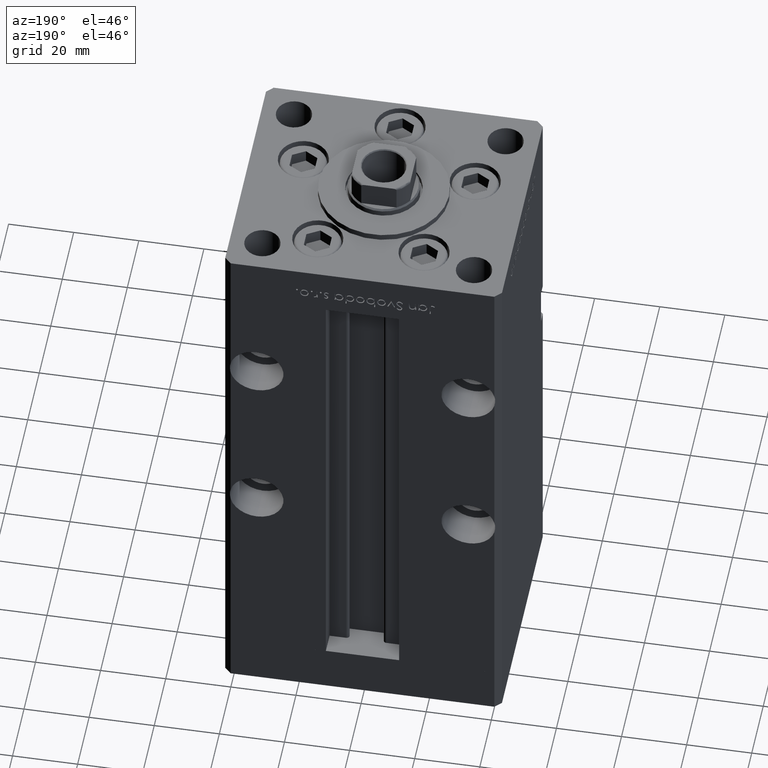
[diagram: clean part render]
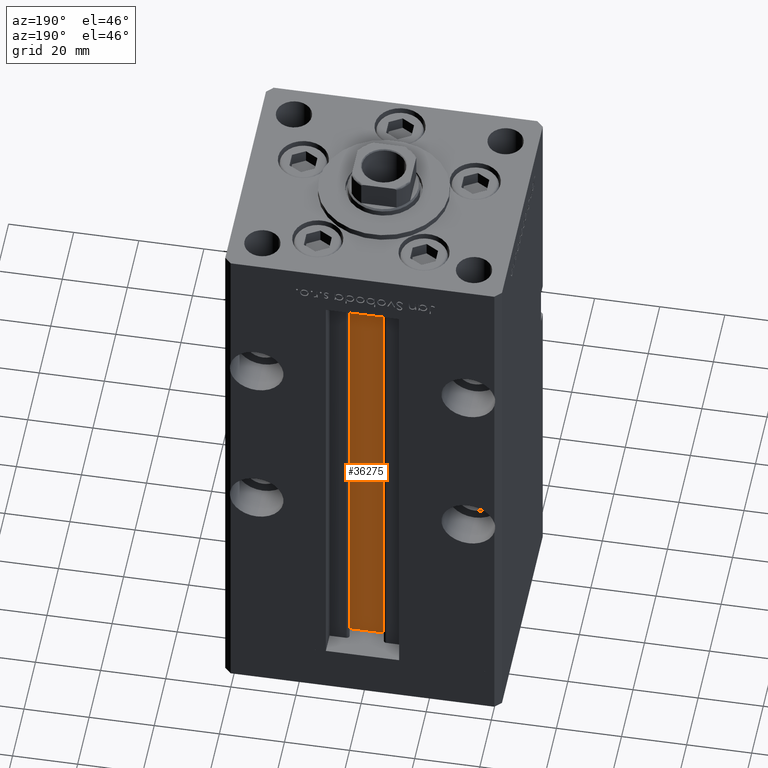
[diagram: same view with one face highlighted and labeled with its STEP entity id]
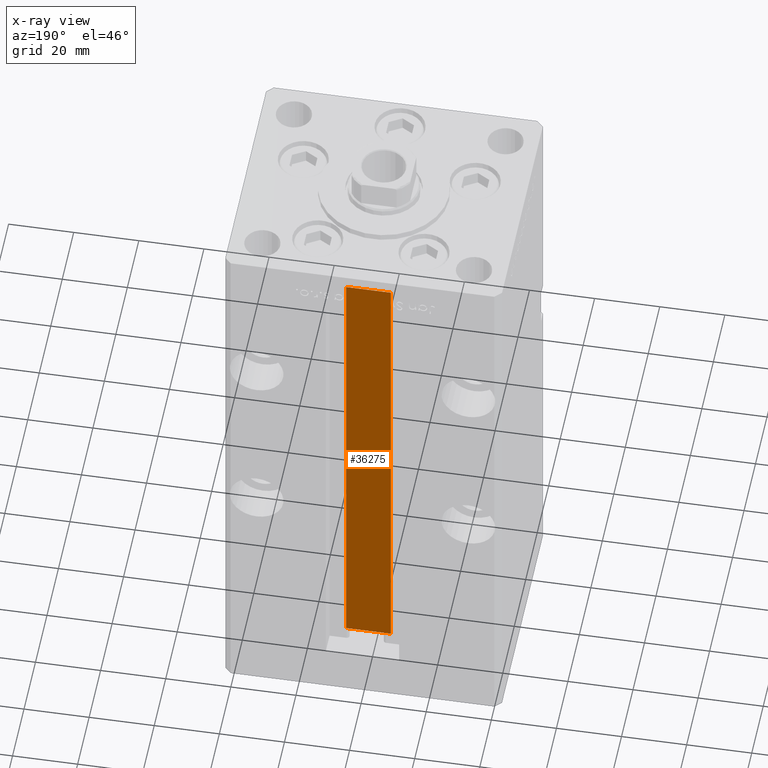
[diagram: x-ray of the same camera — body ghosted, the highlighted face saturated]
A machine part, auxiliary view. The second image highlights one B-rep face of the part: STEP entity #36275.
The next image is the same camera in x-ray: the body ghosted, the highlighted face saturated — about 0% of this face is hidden behind the body in this view.
In plain terms, the highlighted planar face has unit normal (0, -1, 0).
Its self-contained STEP definition (entity closure, byte-faithful):
#380 = CARTESIAN_POINT ( 'NONE',  ( 6.876153656360465938, 26.99999999999986855, 0.000000000000000000 ) ) ;
#715 = CARTESIAN_POINT ( 'NONE',  ( -6.876153656360465938, 26.99999999999986855, 0.000000000000000000 ) ) ;
#1539 = ORIENTED_EDGE ( 'NONE', *, *, #35085, .F. ) ;
#3100 = FACE_OUTER_BOUND ( 'NONE', #31884, .T. ) ;
#4001 = ORIENTED_EDGE ( 'NONE', *, *, #31558, .F. ) ;
#5579 = ORIENTED_EDGE ( 'NONE', *, *, #34227, .T. ) ;
#5958 = DIRECTION ( 'NONE',  ( -0.000000000000000000, -0.000000000000000000, 1.000000000000000000 ) ) ;
#6955 = VECTOR ( 'NONE', #11304, 1000.000000000000000 ) ;
#7330 = LINE ( 'NONE', #47887, #21591 ) ;
#8433 = ORIENTED_EDGE ( 'NONE', *, *, #22993, .F. ) ;
#9498 = VERTEX_POINT ( 'NONE', #52162 ) ;
#11304 = DIRECTION ( 'NONE',  ( -0.000000000000000000, -0.000000000000000000, 1.000000000000000000 ) ) ;
#12137 = VERTEX_POINT ( 'NONE', #28974 ) ;
#15504 = CARTESIAN_POINT ( 'NONE',  ( 0.000000000000000000, 26.99999999999986855, 148.5000000000000000 ) ) ;
#19495 = PLANE ( 'NONE',  #33649 ) ;
#20825 = DIRECTION ( 'NONE',  ( 0.000000000000000000, 0.000000000000000000, -1.000000000000000000 ) ) ;
#21161 = LINE ( 'NONE', #715, #6955 ) ;
#21591 = VECTOR ( 'NONE', #44391, 1000.000000000000000 ) ;
#22993 = EDGE_CURVE ( 'NONE', #12137, #30149, #27684, .T. ) ;
#24483 = VERTEX_POINT ( 'NONE', #48456 ) ;
#25634 = DIRECTION ( 'NONE',  ( 0.000000000000000000, -1.000000000000000000, -0.000000000000000000 ) ) ;
#27684 = LINE ( 'NONE', #38717, #41771 ) ;
#28974 = CARTESIAN_POINT ( 'NONE',  ( 6.876153656360465938, 26.99999999999986855, 0.000000000000000000 ) ) ;
#30149 = VERTEX_POINT ( 'NONE', #32680 ) ;
#31558 = EDGE_CURVE ( 'NONE', #9498, #12137, #7330, .T. ) ;
#31884 = EDGE_LOOP ( 'NONE', ( #8433, #4001, #5579, #1539 ) ) ;
#32680 = CARTESIAN_POINT ( 'NONE',  ( 6.876153656360465938, 26.99999999999986855, 148.5000000000000000 ) ) ;
#33649 = AXIS2_PLACEMENT_3D ( 'NONE', #380, #25634, #20825 ) ;
#34227 = EDGE_CURVE ( 'NONE', #9498, #24483, #21161, .T. ) ;
#35085 = EDGE_CURVE ( 'NONE', #30149, #24483, #45044, .T. ) ;
#36275 = ADVANCED_FACE ( 'NONE', ( #3100 ), #19495, .F. ) ;
#38717 = CARTESIAN_POINT ( 'NONE',  ( 6.876153656360465938, 26.99999999999986855, 0.000000000000000000 ) ) ;
#41771 = VECTOR ( 'NONE', #5958, 1000.000000000000000 ) ;
#44391 = DIRECTION ( 'NONE',  ( 1.000000000000000000, -0.000000000000000000, -0.000000000000000000 ) ) ;
#45044 = LINE ( 'NONE', #15504, #52443 ) ;
#47887 = CARTESIAN_POINT ( 'NONE',  ( 6.876153656360465938, 26.99999999999986855, 0.000000000000000000 ) ) ;
#48456 = CARTESIAN_POINT ( 'NONE',  ( -6.876153656360465938, 26.99999999999986855, 148.5000000000000000 ) ) ;
#48803 = DIRECTION ( 'NONE',  ( -1.000000000000000000, 0.000000000000000000, 0.000000000000000000 ) ) ;
#52162 = CARTESIAN_POINT ( 'NONE',  ( -6.876153656360465938, 26.99999999999986855, 0.000000000000000000 ) ) ;
#52443 = VECTOR ( 'NONE', #48803, 1000.000000000000000 ) ;